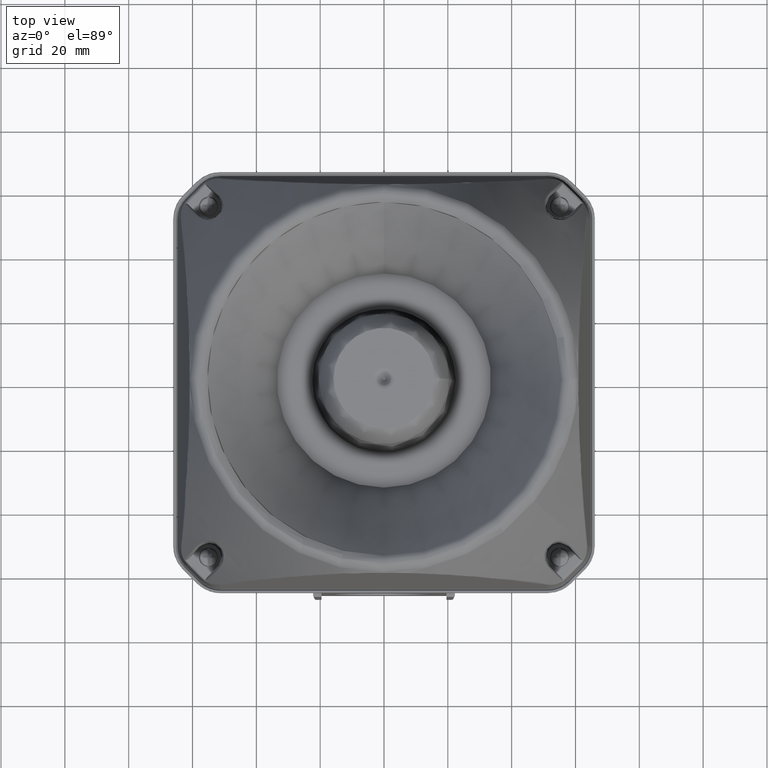
[diagram: clean part render]
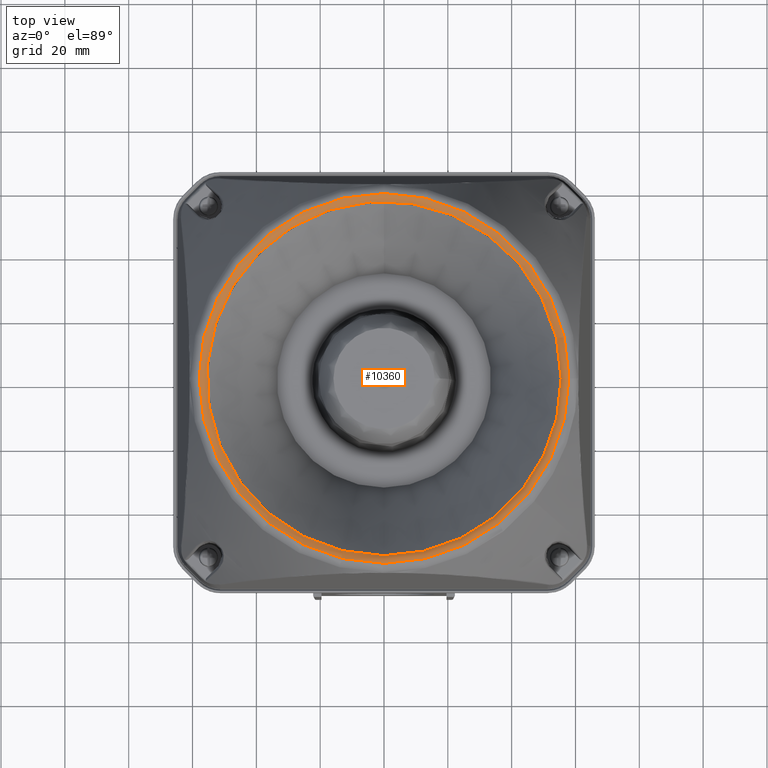
[diagram: same view with one face highlighted and labeled with its STEP entity id]
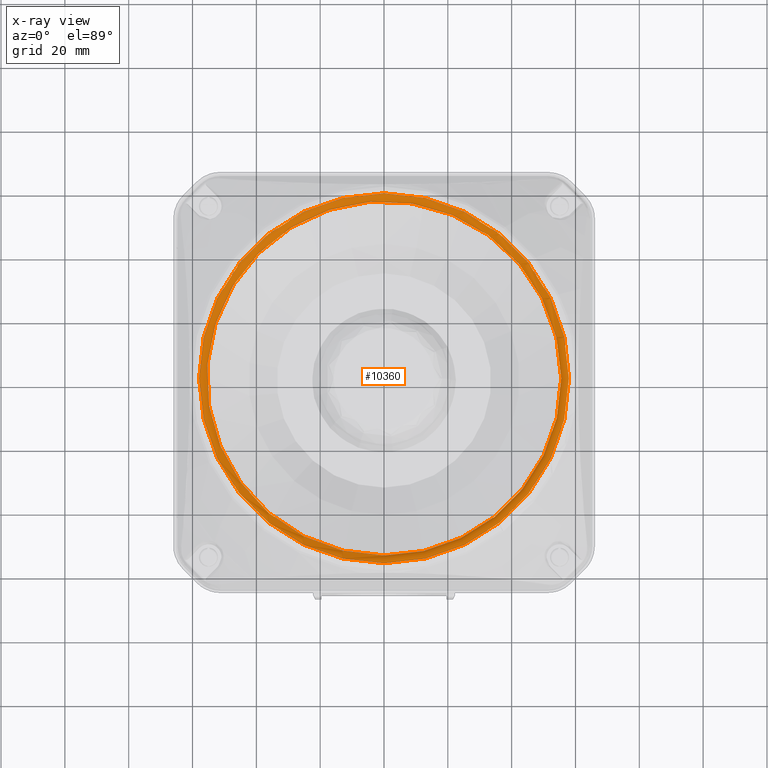
[diagram: x-ray of the same camera — body ghosted, the highlighted face saturated]
A machine part, top view. The second image highlights one B-rep face of the part: STEP entity #10360.
The next image is the same camera in x-ray: the body ghosted, the highlighted face saturated — about 0% of this face is hidden behind the body in this view.
In plain terms, the highlighted toroidal blend (fillet) surface has major radius 57.9341 mm and minor (blend) radius 3 mm.
Its self-contained STEP definition (entity closure, byte-faithful):
#10360=ADVANCED_FACE('',(#12817,#12818),#12484,.T.);
#12484=TOROIDAL_SURFACE('',#36963,57.9340753726068,3.);
#12817=FACE_BOUND('',#13463,.T.);
#12818=FACE_BOUND('',#13464,.T.);
#13463=EDGE_LOOP('',(#16531));
#13464=EDGE_LOOP('',(#16532));
#16531=ORIENTED_EDGE('',*,*,#30012,.F.);
#16532=ORIENTED_EDGE('',*,*,#29943,.F.);
#26604=VERTEX_POINT('',#53757);
#26655=VERTEX_POINT('',#54214);
#29943=EDGE_CURVE('',#26604,#26604,#35039,.T.);
#30012=EDGE_CURVE('',#26655,#26655,#35050,.T.);
#35039=CIRCLE('',#36884,55.5261242205076);
#35050=CIRCLE('',#36914,57.9340753726068);
#36884=AXIS2_PLACEMENT_3D('',#53756,#41664,#41665);
#36914=AXIS2_PLACEMENT_3D('',#54213,#41758,#41759);
#36963=AXIS2_PLACEMENT_3D('',#54446,#41870,#41871);
#41664=DIRECTION('',(0.,1.96039306178E-015,1.));
#41665=DIRECTION('',(0.,-1.,1.99946068667821E-015));
#41758=DIRECTION('',(0.,0.,-1.));
#41759=DIRECTION('',(1.,0.,0.));
#41870=DIRECTION('',(0.,0.,1.));
#41871=DIRECTION('',(1.,0.,0.));
#53756=CARTESIAN_POINT('',(7.03922787407267E-014,0.500000000000021,75.1393557110237));
#53757=CARTESIAN_POINT('',(7.03922787407267E-014,-55.0261242205076,75.1393557110238));
#54213=CARTESIAN_POINT('',(7.03922787407267E-014,0.500000000000021,76.3500063183382));
#54214=CARTESIAN_POINT('',(57.9340753726069,0.500000000000021,76.3500063183382));
#54446=CARTESIAN_POINT('',(7.03922787407267E-014,0.500000000000021,73.3500063183382));